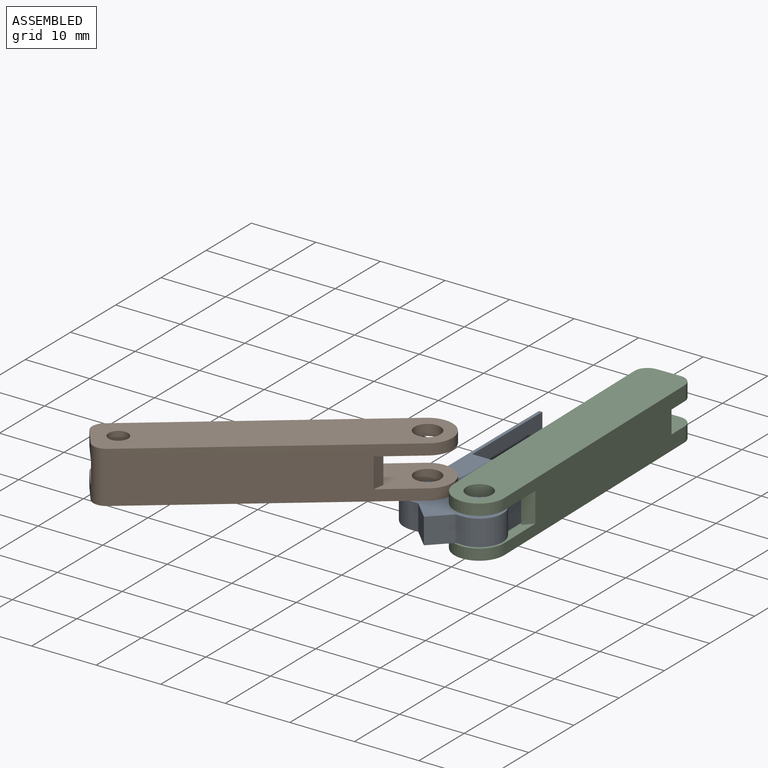
[diagram: assembled view]
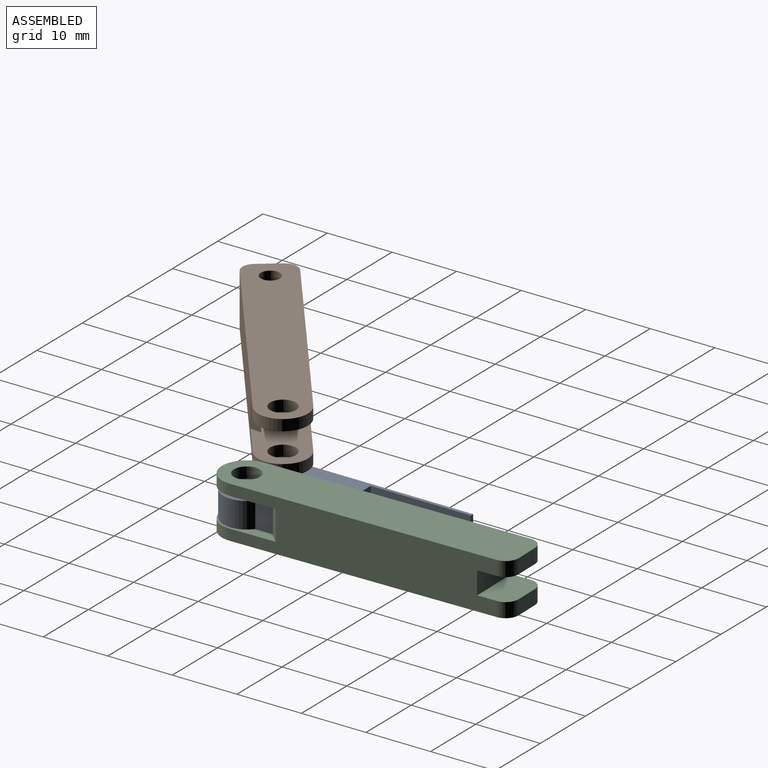
[diagram: assembled view, second angle]
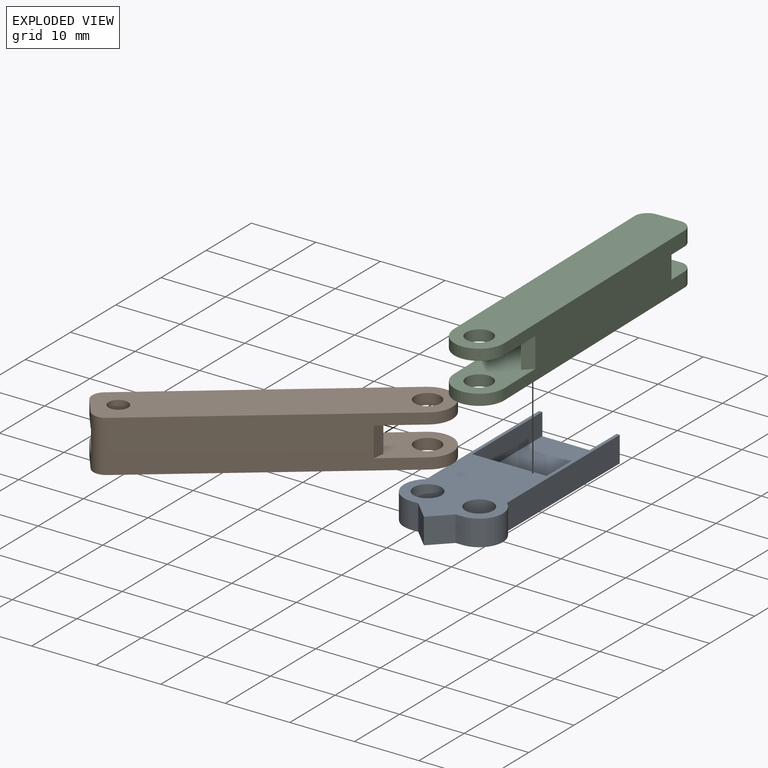
[diagram: exploded view]
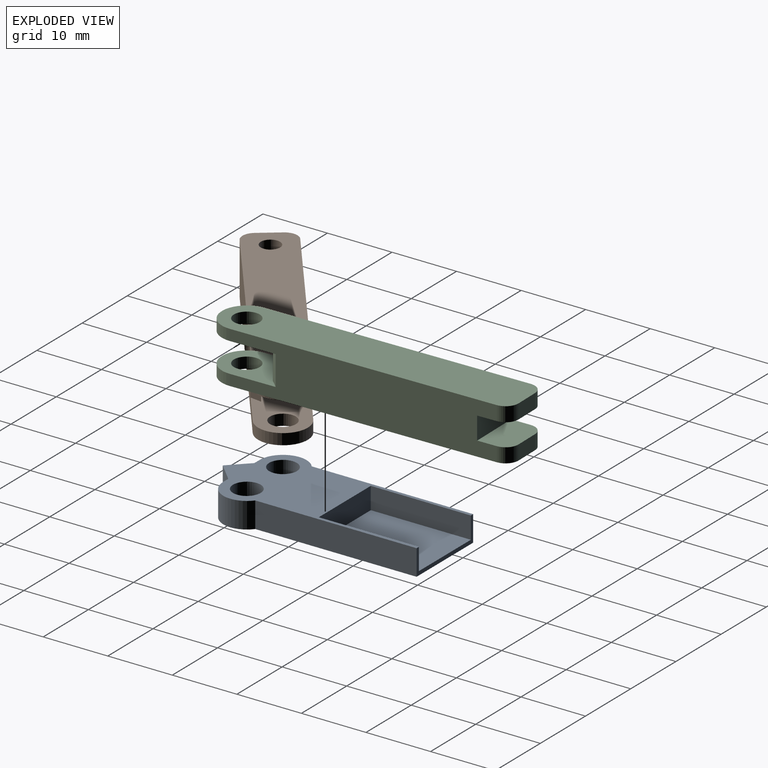
[diagram: exploded view, second angle]
ASSEMBLY  parts=3 mates=2
PART A: 17 faces, bbox 15.3x34.4x4 mm
  f0: plane 34.41x15.3mm, normal (0,0,1), area 205.2mm2, adj f1,f2,f3,f4,f5,f6,f7,f8
  f1: plane 4x1.11mm, normal (0,-1,0), area 4.4mm2, adj f0,f2,f11,f12
  f2: plane 4x2.89mm, normal (-0.71,-0.71,0), area 16.3mm2, adj f0,f1,f3,f12
  f3: plane 4x2.89mm, normal (0.71,-0.71,0), area 16.3mm2, adj f0,f2,f4,f12
  f4: plane 4x1.11mm, normal (0,-1,0), area 4.4mm2, adj f0,f3,f5,f12
  f5: cylinder r=3.65mm len=6.52mm, axis (0,0,-1), area 36.2mm2, adj f0,f4,f6,f12
  f6: plane 25x4mm, normal (1,0,0), area 100mm2, adj f0,f5,f7,f12
  f7: plane 12.5x4mm, normal (0,1,0), area 10.9mm2, adj f0,f6,f8,f12,f13,f14,f15
  f8: plane 25x4mm, normal (-1,0,0), area 100mm2, adj f0,f7,f11,f12
  f9: cylinder r=2.15mm len=4.3mm, axis (0,0,-1), area 54mm2, adj f0,f12
  f10: cylinder r=2.15mm len=4.3mm, axis (0,0,-1), area 54mm2, adj f0,f12
  f11: cylinder r=3.65mm len=6.52mm, axis (0,0,-1), area 36.2mm2, adj f0,f1,f8,f12
  f12: plane 34.41x15.3mm, normal (0,0,-1), area 383.5mm2, adj f1,f2,f3,f4,f5,f6,f7,f8
  f13: plane 15.5x3.4mm, normal (-1,0,0), area 52.7mm2, adj f0,f7,f14,f16
  f14: plane 15.5x11.5mm, normal (0,0,1), area 178.2mm2, adj f7,f13,f15,f16
  f15: plane 15.5x3.4mm, normal (1,0,0), area 52.7mm2, adj f0,f7,f14,f16
  f16: plane 11.5x3.4mm, normal (0,1,0), area 39.1mm2, adj f0,f13,f14,f15
PART B: 25 faces, bbox 7.7x46.7x8 mm
  f0: plane 3.7x2.25mm, normal (0,1,0), area 8.3mm2, adj f9,f15,f16,f21
  f1: cylinder r=2mm len=2.25mm, axis (0,0,-1), area 7.1mm2, adj f2,f6,f10,f22
  f2: plane 40.87x8mm, normal (1,0,0), area 173.1mm2, adj f1,f4,f7,f9,f10,f11,f12,f14
  f3: plane 40.87x8mm, normal (-1,0,0), area 294.7mm2, adj f4,f7,f9,f10,f11,f12,f15,f17
  f4: cylinder r=3.85mm len=7.7mm, axis (0,0,-1), area 20.6mm2, adj f2,f3,f10,f12
  f5: cylinder r=2mm len=4mm, axis (0,0,-1), area 21.4mm2, adj f10,f12
  f6: plane 3.7x2.25mm, normal (0,1,0), area 8.3mm2, adj f1,f10,f15,f22
  f7: cylinder r=3.85mm len=7.7mm, axis (0,0,-1), area 20.6mm2, adj f2,f3,f9,f11
  f8: cylinder r=2mm len=4mm, axis (0,0,-1), area 21.4mm2, adj f9,f11
  f9: plane 46.72x7.7mm, normal (0,0,1), area 332.1mm2, adj f0,f2,f3,f7,f8,f15,f16,f24
  f10: plane 46.72x7.7mm, normal (0,0,-1), area 332.1mm2, adj f1,f2,f3,f4,f5,f6,f15,f23
  f11: plane 35.02x7.7mm, normal (0,0,-1), area 218.5mm2, adj f2,f3,f7,f8,f13,f14,f17
  f12: plane 35.02x7.7mm, normal (0,0,1), area 218.5mm2, adj f2,f3,f4,f5,f13,f14,f17
  f13: plane 25.46x4.6mm, normal (1,0,0), area 117.1mm2, adj f11,f12,f14,f17
  f14: plane 6.4x4.6mm, normal (0,-1,0), area 29.4mm2, adj f2,f11,f12,f13
  f15: cylinder r=2mm len=8mm, axis (0,0,1), area 23.7mm2, adj f0,f3,f6,f9,f10,f18,f21,f22
  f16: cylinder r=2mm len=2.25mm, axis (0,0,-1), area 7.1mm2, adj f0,f2,f9,f21
  f17: plane 4.6x1.3mm, normal (-0.71,-0.71,0), area 8.5mm2, adj f3,f11,f12,f13
  f18: plane 3.5x0.75mm, normal (1,0,0), area 2.6mm2, adj f15,f19,f21,f22
  f19: cylinder r=3.6mm len=6.92mm, axis (0,0,-1), area 45.8mm2, adj f18,f20,f21,f22
  f20: plane 3.5x0.53mm, normal (0,1,0), area 1.9mm2, adj f2,f19,f21,f22
  f21: plane 7.45x7.2mm, normal (0,0,-1), area 37.5mm2, adj f0,f2,f15,f16,f18,f19,f20,f24
  f22: plane 7.45x7.2mm, normal (0,0,1), area 37.5mm2, adj f1,f2,f6,f15,f18,f19,f20,f23
  f23: cylinder r=1.5mm len=3mm, axis (0,0,1), area 21.2mm2, adj f10,f22
  f24: cylinder r=1.5mm len=3mm, axis (0,0,1), area 21.2mm2, adj f9,f21
PART C: 22 faces, bbox 7.7x46.7x8 mm
  f0: plane 3.7x2.25mm, normal (0,1,0), area 8.3mm2, adj f1,f2,f12,f20
  f1: cylinder r=2mm len=2.25mm, axis (0,0,1), area 7.1mm2, adj f0,f4,f12,f20
  f2: cylinder r=2mm len=2.25mm, axis (0,0,-1), area 7.1mm2, adj f0,f8,f12,f20
  f3: plane 25.46x4.6mm, normal (-1,0,0), area 117.1mm2, adj f13,f14,f15,f18
  f4: plane 40.87x8mm, normal (1,0,0), area 284.2mm2, adj f1,f5,f9,f11,f12,f13,f14,f16
  f5: cylinder r=3.85mm len=7.7mm, axis (0,0,-1), area 20.6mm2, adj f4,f8,f12,f14
  f6: cylinder r=2mm len=4mm, axis (0,0,-1), area 21.4mm2, adj f12,f14
  f7: plane 3.7x2.25mm, normal (0,1,0), area 8.3mm2, adj f11,f16,f17,f21
  f8: plane 40.87x8mm, normal (-1,0,0), area 173.1mm2, adj f2,f5,f9,f11,f12,f13,f14,f15
  f9: cylinder r=3.85mm len=7.7mm, axis (0,0,-1), area 20.6mm2, adj f4,f8,f11,f13
  f10: cylinder r=2mm len=4mm, axis (0,0,-1), area 21.4mm2, adj f11,f13
  f11: plane 46.72x7.7mm, normal (0,0,1), area 339.1mm2, adj f4,f7,f8,f9,f10,f16,f17
  f12: plane 46.72x7.7mm, normal (0,0,-1), area 339.1mm2, adj f0,f1,f2,f4,f5,f6,f8
  f13: plane 35.02x7.7mm, normal (0,0,-1), area 218.5mm2, adj f3,f4,f8,f9,f10,f15,f18
  f14: plane 35.02x7.7mm, normal (0,0,1), area 218.5mm2, adj f3,f4,f5,f6,f8,f15,f18
  f15: plane 6.4x4.6mm, normal (0,-1,0), area 29.4mm2, adj f3,f8,f13,f14
  f16: cylinder r=2mm len=2.25mm, axis (0,0,1), area 7.1mm2, adj f4,f7,f11,f21
  f17: cylinder r=2mm len=2.25mm, axis (0,0,-1), area 7.1mm2, adj f7,f8,f11,f21
  f18: plane 4.6x1.3mm, normal (0.71,-0.71,0), area 8.5mm2, adj f3,f4,f13,f14
  f19: plane 7.7x3.5mm, normal (0,1,0), area 26.9mm2, adj f4,f8,f20,f21
  f20: plane 7.7x5mm, normal (0,0,1), area 36.8mm2, adj f0,f1,f2,f4,f8,f19
  f21: plane 7.7x5mm, normal (0,0,-1), area 36.8mm2, adj f4,f7,f8,f16,f17,f19
PLACE A t=(-2.76,-15.59,8.83)mm fixed
PLACE B rot(axis=(0,0,1),127.3deg) t=(-9.18,-12.41,15.33)mm
PLACE C rot(axis=(0,0,1),1deg) t=(-2.76,-15.66,9.03)mm
MATE revolute C.f6 <-> A.f9  axis (0,0,-1) through (1.24,-15.59,11.33)mm
MATE revolute A.f10 <-> B.f4  axis (0,0,1) through (-6.76,-15.59,10.83)mm
